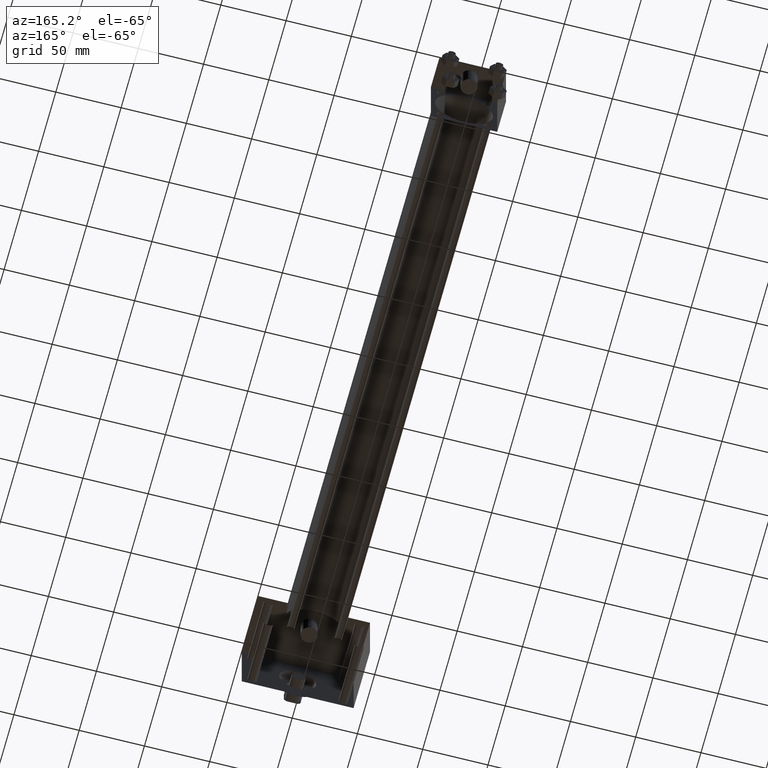
[diagram: clean part render]
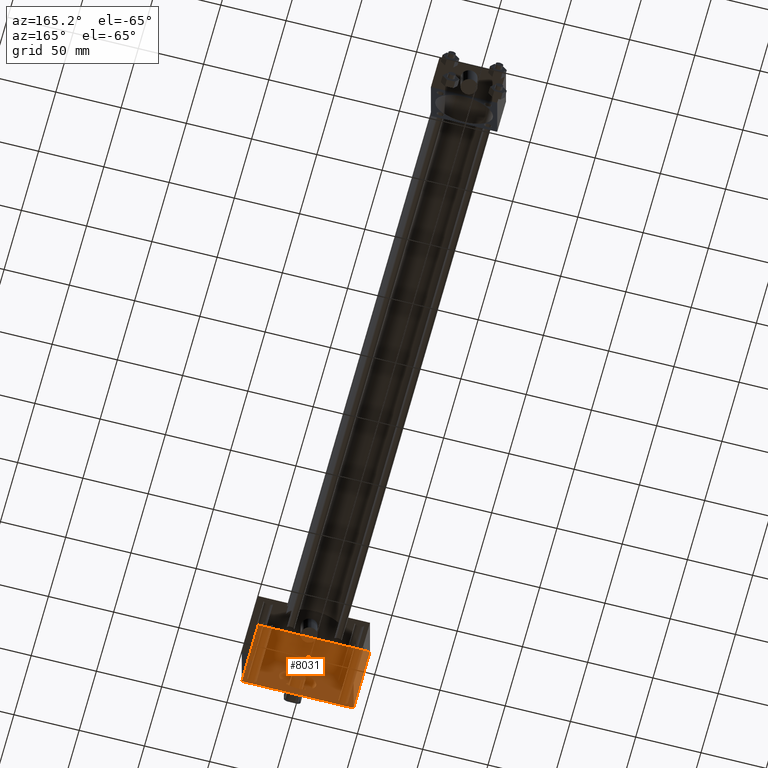
[diagram: same view with one face highlighted and labeled with its STEP entity id]
A machine part, auxiliary view. The second image highlights one B-rep face of the part: STEP entity #8031.
In plain terms, the highlighted planar face has unit normal (0, 0, -1).
Its self-contained STEP definition (entity closure, byte-faithful):
#553=EDGE_CURVE('',#559,#559,#554,.T.);
#554=CIRCLE('',#555,2.778125000E+000);
#555=AXIS2_PLACEMENT_3D('',#556,#557,#558);
#556=CARTESIAN_POINT('',(0.000000000E+000,4.603750000E+001,-2.540000000E+001));
#557=DIRECTION('',(0.0E+000,0.0E+000,-1.0E+000));
#558=DIRECTION('',(-1.0E+000,0.0E+000,0.0E+000));
#559=VERTEX_POINT('',#560);
#560=CARTESIAN_POINT('',(-2.778125000E+000,4.603750000E+001,-2.540000000E+001));
#738=EDGE_CURVE('',#743,#744,#739,.T.);
#739=LINE('',#740,#741);
#740=CARTESIAN_POINT('',(-4.286250000E+001,1.587500000E+001,-2.540000000E+001));
#741=VECTOR('',#742,1.0E+000);
#742=DIRECTION('',(1.0E+000,0.0E+000,0.0E+000));
#743=VERTEX_POINT('',#745);
#744=VERTEX_POINT('',#746);
#745=CARTESIAN_POINT('',(-4.286250000E+001,1.587500000E+001,-2.540000000E+001));
#746=CARTESIAN_POINT('',(4.286250000E+001,1.587500000E+001,-2.540000000E+001));
#804=FACE_OUTER_BOUND('',#806,.T.);
#805=FACE_BOUND('',#807,.T.);
#806=EDGE_LOOP('',(#808,#809,#810,#811));
#807=EDGE_LOOP('',(#831));
#808=ORIENTED_EDGE('',*,*,#812,.T.);
#809=ORIENTED_EDGE('',*,*,#738,.F.);
#810=ORIENTED_EDGE('',*,*,#819,.F.);
#811=ORIENTED_EDGE('',*,*,#826,.T.);
#812=EDGE_CURVE('',#817,#744,#813,.T.);
#813=LINE('',#814,#815);
#814=CARTESIAN_POINT('',(4.286250000E+001,6.350000000E+001,-2.540000000E+001));
#815=VECTOR('',#816,1.0E+000);
#816=DIRECTION('',(0.0E+000,-1.0E+000,0.0E+000));
#817=VERTEX_POINT('',#818);
#818=CARTESIAN_POINT('',(4.286250000E+001,6.350000000E+001,-2.540000000E+001));
#819=EDGE_CURVE('',#824,#743,#820,.T.);
#820=LINE('',#821,#822);
#821=CARTESIAN_POINT('',(-4.286250000E+001,6.350000000E+001,-2.540000000E+001));
#822=VECTOR('',#823,1.0E+000);
#823=DIRECTION('',(0.0E+000,-1.0E+000,0.0E+000));
#824=VERTEX_POINT('',#825);
#825=CARTESIAN_POINT('',(-4.286250000E+001,6.350000000E+001,-2.540000000E+001));
#826=EDGE_CURVE('',#824,#817,#827,.T.);
#827=LINE('',#828,#829);
#828=CARTESIAN_POINT('',(-4.286250000E+001,6.350000000E+001,-2.540000000E+001));
#829=VECTOR('',#830,1.0E+000);
#830=DIRECTION('',(1.0E+000,0.0E+000,0.0E+000));
#831=ORIENTED_EDGE('',*,*,#553,.F.);
#832=PLANE('',#833);
#833=AXIS2_PLACEMENT_3D('',#834,#835,#836);
#834=CARTESIAN_POINT('',(-4.286250000E+001,6.350000000E+001,-2.540000000E+001));
#835=DIRECTION('',(0.0E+000,0.0E+000,-1.0E+000));
#836=DIRECTION('',(-1.0E+000,0.0E+000,0.0E+000));
#8031=ADVANCED_FACE('',(#804,#805),#832,.T.);